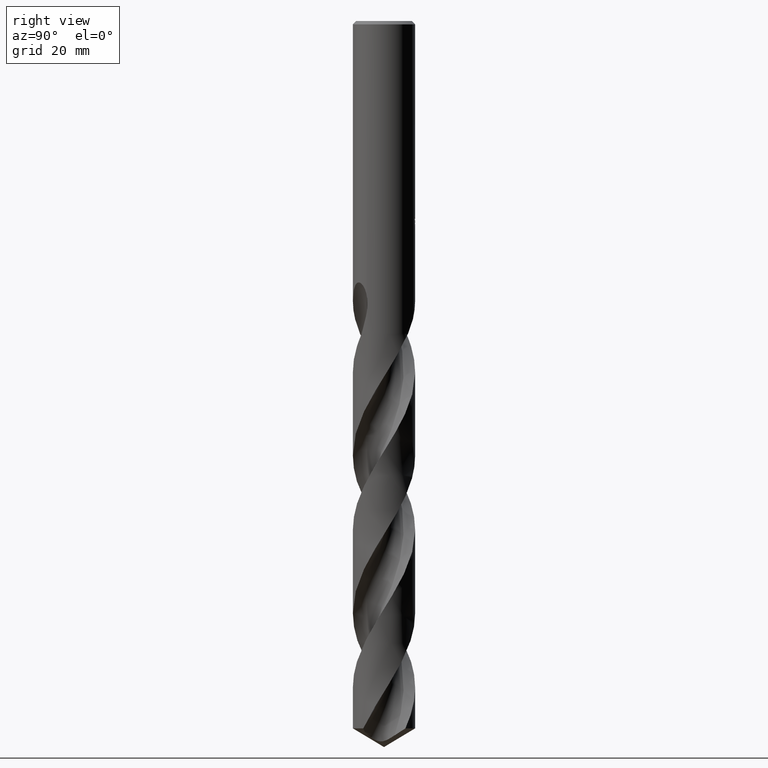
[diagram: clean part render]
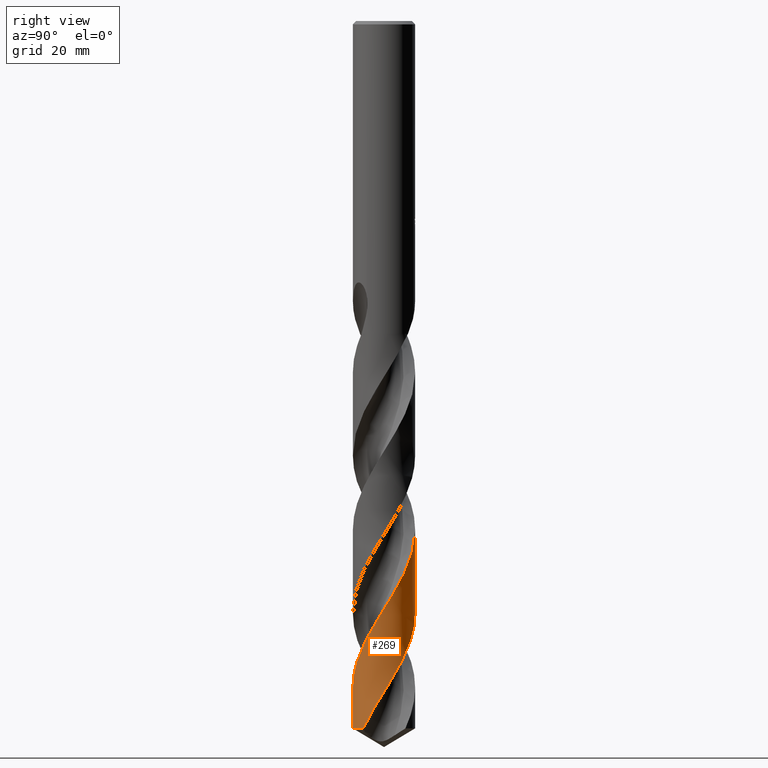
[diagram: same view with one face highlighted and labeled with its STEP entity id]
A machine part, right view. The second image highlights one B-rep face of the part: STEP entity #269.
In plain terms, the highlighted conical surface has half-angle 0 deg.
Its self-contained STEP definition (entity closure, byte-faithful):
#263=EDGE_CURVE('',#315,#585,#739,.T.);
#269=ADVANCED_FACE('',(#745),#746,.T.);
#315=VERTEX_POINT('',#796);
#361=EDGE_CURVE('',#475,#547,#844,.T.);
#439=VERTEX_POINT('',#930);
#475=VERTEX_POINT('',#970);
#547=VERTEX_POINT('',#1050);
#575=EDGE_CURVE('',#439,#585,#1082,.T.);
#585=VERTEX_POINT('',#1093);
#645=EDGE_CURVE('',#315,#547,#1156,.T.);
#649=EDGE_CURVE('',#439,#475,#1160,.T.);
#739=LINE('',#1250,#1251);
#745=FACE_OUTER_BOUND('',#1267,.T.);
#746=CONICAL_SURFACE('',#1268,7.24995,1.08880559160692E-006);
#796=CARTESIAN_POINT('',(8.8829462208022E-015,7.24994974277336,-118.485633632379));
#844=LINE('',#2136,#2137);
#930=CARTESIAN_POINT('',(5.41990999758817,-4.81529600523621,-164.64376051205));
#970=CARTESIAN_POINT('',(8.89818686412296E-016,-7.25,-164.64376051205));
#1050=CARTESIAN_POINT('',(3.37508618987888E-013,-7.24998968622698,-155.171203519788));
#1082=B_SPLINE_CURVE_WITH_KNOTS('',3,(#5506,#5507,#5508,#5509,#5510,#5511,#5512,#5513,#5514,#5515,#5516,#5517,#5518,#5519,#5520,#5521,#5522,#5523,#5524,#5525,#5526,#5527,#5528,#5529,#5530,#5531,#5532,#5533,#5534,#5535,#5536,#5537,#5538,#5539,#5540,#5541,#5542,#5543,#5544,#5545,#5546,#5547,#5548,#5549,#5550,#5551,#5552,#5553,#5554,#5555,#5556,#5557,#5558,#5559,#5560,#5561,#5562,#5563,#5564,#5565,#5566,#5567,#5568,#5569,#5570,#5571,#5572,#5573,#5574,#5575,#5576,#5577,#5578,#5579,#5580,#5581,#5582,#5583,#5584,#5585,#5586,#5587,#5588,#5589,#5590,#5591,#5592,#5593,#5594,#5595,#5596,#5597,#5598,#5599,#5600,#5601,#5602,#5603,#5604,#5605,#5606,#5607,#5608,#5609,#5610,#5611,#5612,#5613,#5614,#5615,#5616,#5617,#5618,#5619,#5620,#5621,#5622,#5623,#5624,#5625,#5626,#5627,#5628,#5629,#5630,#5631,#5632,#5633,#5634,#5635,#5636,#5637,#5638,#5639,#5640,#5641,#5642,#5643,#5644,#5645,#5646,#5647),.UNSPECIFIED.,.F.,.F.,(4,2,2,2,2,2,2,2,2,2,2,2,2,2,2,2,2,2,2,2,2,2,2,2,2,2,2,2,2,2,2,2,2,2,2,2,2,2,2,2,2,2,2,2,2,2,2,2,2,2,2,2,2,2,2,2,2,2,2,2,2,2,2,2,2,2,2,2,2,2,4),(0.0,1.77031661136336,2.2079159781432,5.46100723138121,5.57044834977107,7.3284960886846,8.21140107168612,9.97065888780956,11.6071749403061,14.1226461325513,15.3162181680127,16.5735950786989,18.308424539958,19.2434007951192,20.0001691051215,21.7072119357992,22.6635146181187,23.6807587615304,25.3634901485962,27.309830980384,29.0814694774495,30.8834037993884,32.4137662076556,34.469370125932,36.2248176799657,38.7477141419182,40.0133134670493,41.2739882944985,44.2853235477928,44.592921168319,47.7529109944366,48.1591466178199,51.1612755409815,52.0170024877003,53.7143185301956,54.592309956674,55.4321877625464,58.5191528015401,58.6264359360505,61.6033989685783,62.655911313546,64.4200206673029,66.1941874600155,67.9556674370733,69.7190180895748,71.4814401027902,73.2456270575926,75.0088286872948,76.7740908327381,78.5382076590317,80.3045519142809,81.9634016267342,83.9117161386473,85.5611138498389,88.3863651272501,89.4120787105353,91.1670719596842,93.1225023530171,94.9685097181707,98.0078323691015,102.389926870379,102.989329655611,103.83611565967,104.967343775863,105.725220734157,107.429516948859,108.723229495338,110.126546036505,112.443371813341,115.304596970301,122.904156213651),.UNSPECIFIED.);
#1093=CARTESIAN_POINT('',(-1.8206496868914E-014,7.24997079218863,-137.818208198195));
#1156=B_SPLINE_CURVE_WITH_KNOTS('',3,(#5959,#5960,#5961,#5962,#5963,#5964,#5965,#5966,#5967,#5968,#5969,#5970,#5971,#5972,#5973,#5974,#5975,#5976,#5977,#5978,#5979,#5980,#5981,#5982,#5983,#5984,#5985,#5986,#5987,#5988,#5989,#5990,#5991,#5992,#5993,#5994,#5995,#5996,#5997,#5998,#5999,#6000,#6001,#6002,#6003,#6004,#6005,#6006,#6007,#6008,#6009,#6010,#6011,#6012,#6013,#6014,#6015,#6016,#6017,#6018,#6019,#6020,#6021,#6022,#6023,#6024,#6025,#6026,#6027,#6028,#6029,#6030,#6031,#6032,#6033,#6034,#6035,#6036,#6037,#6038,#6039,#6040,#6041,#6042,#6043,#6044,#6045,#6046,#6047,#6048,#6049,#6050,#6051,#6052,#6053,#6054,#6055,#6056,#6057,#6058,#6059,#6060,#6061,#6062,#6063,#6064,#6065,#6066,#6067,#6068,#6069,#6070,#6071,#6072,#6073,#6074,#6075,#6076,#6077,#6078,#6079,#6080,#6081,#6082,#6083,#6084,#6085,#6086,#6087,#6088,#6089,#6090,#6091,#6092,#6093,#6094,#6095,#6096,#6097,#6098,#6099,#6100,#6101,#6102,#6103,#6104,#6105,#6106),.UNSPECIFIED.,.F.,.F.,(4,2,2,2,2,2,2,2,2,2,2,2,2,2,2,2,2,2,2,2,2,2,2,2,2,2,2,2,2,2,2,2,2,2,2,2,2,2,2,2,2,2,2,2,2,2,2,2,2,2,2,2,2,2,2,2,2,2,2,2,2,2,2,2,2,2,2,2,2,2,2,2,2,4),(0.0,0.36127885700173,0.511555793726125,0.572866159470838,0.614029061692054,0.682420342986496,1.57952066676842,1.84040718541646,1.99265953726927,2.12832221497726,2.29960421961718,2.48533632622595,2.80173896702203,3.84234105991175,4.39947394299839,4.92203251217006,5.45622287414624,8.05018012833487,9.1221406645093,13.6947311687407,14.102216249901,15.8223427710484,18.2890880104527,19.5146266012315,20.1289702679824,21.3383141707364,23.757680618259,24.8346883552372,27.2568316181812,27.8949786160675,29.8365778595351,30.4509073237146,31.6601114271447,34.0799118915367,35.1506322810658,37.5721568835027,38.2102088311488,40.1449371443943,40.7592660788133,41.9688728734922,44.3882195076398,45.4600698530377,47.880860326735,48.929964727779,51.3529310826159,51.990817867352,53.9712786612536,56.4222061713072,57.6512908938055,60.0879107964367,61.3194006010051,62.5325182401024,64.912313859618,66.0636797856345,68.4830104071851,69.546233234091,71.9677327347099,72.6055196053814,74.5659229981766,77.0183015320576,78.2468500130202,80.6845201571087,81.915469341264,83.1299620084256,85.4437890951745,86.6532080460393,88.9244914349549,89.9238486204711,91.8017006905451,93.463433704742,96.3485052316724,96.4164163729482,98.5837904980097,105.146051900226),.UNSPECIFIED.);
#1160=CIRCLE('',#6111,7.25);
#1250=CARTESIAN_POINT('',(-8.85854403598381E-016,7.24995,-118.721880256025));
#1251=VECTOR('',#7099,1.0);
#1267=EDGE_LOOP('',(#7101,#7102,#7103,#7104,#7105));
#1268=AXIS2_PLACEMENT_3D('',#7106,#7107,#7108);
#2136=CARTESIAN_POINT('',(8.89812563380527E-016,-7.24995,-118.721880256025));
#2137=VECTOR('',#7204,1.0);
#5506=CARTESIAN_POINT('',(5.41990999758818,-4.81529600523614,-164.64376051205));
#5507=CARTESIAN_POINT('',(5.62699327309877,-4.5822102989879,-164.142749418872));
#5508=CARTESIAN_POINT('',(5.81847945492335,-4.33639775587073,-163.642954985553));
#5509=CARTESIAN_POINT('',(6.03655625552251,-4.01601333712037,-163.017291895658));
#5510=CARTESIAN_POINT('',(6.0787356379395,-3.95187998572451,-162.893228652454));
#5511=CARTESIAN_POINT('',(6.42635111747682,-3.40456690166788,-161.846719169909));
#5512=CARTESIAN_POINT('',(6.67453029300598,-2.8877997001006,-160.93399500871));
#5513=CARTESIAN_POINT('',(6.86569832857158,-2.32915910769457,-159.980768159069));
#5514=CARTESIAN_POINT('',(6.87184969283005,-2.31094754797721,-159.949731846023));
#5515=CARTESIAN_POINT('',(6.97576900943229,-1.99919199465421,-159.419307551442));
#5516=CARTESIAN_POINT('',(7.05482273625604,-1.69942187986143,-158.921502828501));
#5517=CARTESIAN_POINT('',(7.14445779389312,-1.24232468201037,-158.172130615926));
#5518=CARTESIAN_POINT('',(7.16948251590681,-1.0886372215351,-157.921761672443));
#5519=CARTESIAN_POINT('',(7.22949671576663,-0.626824081643201,-157.171850997222));
#5520=CARTESIAN_POINT('',(7.24968515628131,-0.317195276682783,-156.671424586199));
#5521=CARTESIAN_POINT('',(7.25026840620979,0.281405041044629,-155.707623312573));
#5522=CARTESIAN_POINT('',(7.23333140554921,0.569662369797116,-155.244346244316));
#5523=CARTESIAN_POINT('',(7.14688479599667,1.29655439019226,-154.066046165148));
#5524=CARTESIAN_POINT('',(7.05422309284639,1.73121045236728,-153.351100732361));
#5525=CARTESIAN_POINT('',(6.85979207802596,2.35581683533309,-152.298680292741));
#5526=CARTESIAN_POINT('',(6.78852219378259,2.55392154654746,-151.960433175094));
#5527=CARTESIAN_POINT('',(6.62476147070705,2.95363007456231,-151.264799438851));
#5528=CARTESIAN_POINT('',(6.53146382654359,3.15456023178658,-150.907233606204));
#5529=CARTESIAN_POINT('',(6.28802897079907,3.621631431563,-150.058148116558));
#5530=CARTESIAN_POINT('',(6.12983378927679,3.88341357377489,-149.567343234003));
#5531=CARTESIAN_POINT('',(5.86146707282693,4.26996630458099,-148.810194294107));
#5532=CARTESIAN_POINT('',(5.76296492736454,4.40199490655639,-148.545196181015));
#5533=CARTESIAN_POINT('',(5.5769063288699,4.6344464183102,-148.065149218547));
#5534=CARTESIAN_POINT('',(5.49089136917921,4.7360405009862,-147.850160221019));
#5535=CARTESIAN_POINT('',(5.20174545352909,5.05908052722904,-147.151061009867));
#5536=CARTESIAN_POINT('',(4.98754015223356,5.27040646346485,-146.668114823966));
#5537=CARTESIAN_POINT('',(4.63349626791822,5.57864916640555,-145.912938849712));
#5538=CARTESIAN_POINT('',(4.5026325307077,5.68479004161711,-145.641966580196));
#5539=CARTESIAN_POINT('',(4.2253697890913,5.89410770089898,-145.082105560731));
#5540=CARTESIAN_POINT('',(4.07860651509204,5.99660011510925,-144.793067975654));
#5541=CARTESIAN_POINT('',(3.67917950164341,6.25408143619741,-144.027131939461));
#5542=CARTESIAN_POINT('',(3.42049873699974,6.39924145325933,-143.551120262067));
#5543=CARTESIAN_POINT('',(2.84463127322871,6.67741482746327,-142.522174575997));
#5544=CARTESIAN_POINT('',(2.52578419584051,6.8043985222292,-141.969331673098));
#5545=CARTESIAN_POINT('',(1.90242238508837,7.00286283569718,-140.915130922643));
#5546=CARTESIAN_POINT('',(1.59947328727839,7.07821670394708,-140.414350083861));
#5547=CARTESIAN_POINT('',(0.980202850818778,7.19041102989122,-139.401528393396));
#5548=CARTESIAN_POINT('',(0.664780730908108,7.22638384339527,-138.889760528629));
#5549=CARTESIAN_POINT('',(0.0793070178081223,7.2545332248928,-137.94530625066));
#5550=CARTESIAN_POINT('',(-0.190217773862362,7.25248262712795,-137.512583302559));
#5551=CARTESIAN_POINT('',(-0.820381688522772,7.21249221149475,-136.4966988565));
#5552=CARTESIAN_POINT('',(-1.17917793601373,7.16256155283729,-135.913303973883));
#5553=CARTESIAN_POINT('',(-1.83429700034399,7.02087622248797,-134.833532442993));
#5554=CARTESIAN_POINT('',(-2.13167034896101,6.93638567230096,-134.337663506914));
#5555=CARTESIAN_POINT('',(-2.84132058513967,6.68476152125097,-133.125889535976));
#5556=CARTESIAN_POINT('',(-3.24520851411474,6.49829274029885,-132.410087411078));
#5557=CARTESIAN_POINT('',(-3.82245461761002,6.16444959345078,-131.337157725787));
#5558=CARTESIAN_POINT('',(-4.00999449214374,6.04412762083216,-130.979245151402));
#5559=CARTESIAN_POINT('',(-4.37259186320966,5.7871909116429,-130.263638061758));
#5560=CARTESIAN_POINT('',(-4.54741206866866,5.65084276373333,-129.905853118631));
#5561=CARTESIAN_POINT('',(-5.11733984099442,5.16280074997267,-128.696069507551));
#5562=CARTESIAN_POINT('',(-5.48001297170732,4.77604521299061,-127.850563717607));
#5563=CARTESIAN_POINT('',(-5.82973500413519,4.31033728829711,-126.91060782448));
#5564=CARTESIAN_POINT('',(-5.86166006945815,4.26682158195669,-126.823461607737));
#5565=CARTESIAN_POINT('',(-6.21661824268525,3.77146571709006,-125.840299376584));
#5566=CARTESIAN_POINT('',(-6.48707028727649,3.2845099924617,-124.952799386317));
#5567=CARTESIAN_POINT('',(-6.72658247994817,2.70555711226091,-123.941907256858));
#5568=CARTESIAN_POINT('',(-6.75287464098683,2.63924955203463,-123.826710404083));
#5569=CARTESIAN_POINT('',(-6.9654469618387,2.0791437300671,-122.86023308285));
#5570=CARTESIAN_POINT('',(-7.09824866160923,1.56688755439386,-122.01622443938));
#5571=CARTESIAN_POINT('',(-7.19595969849747,0.895877617765064,-120.922634669847));
#5572=CARTESIAN_POINT('',(-7.21300485106878,0.746348428797049,-120.679605021632));
#5573=CARTESIAN_POINT('',(-7.24994997844439,0.298670501333507,-119.95556878983));
#5574=CARTESIAN_POINT('',(-7.25611392129902,-0.000359597221019359,-119.47559790591));
#5575=CARTESIAN_POINT('',(-7.23739625270149,-0.453644411189846,-118.745646468486));
#5576=CARTESIAN_POINT('',(-7.22607555705036,-0.607832890106011,-118.496914492205));
#5577=CARTESIAN_POINT('',(-7.19433483371619,-0.908372749029441,-118.009742611503));
#5578=CARTESIAN_POINT('',(-7.17434320260441,-1.0546960242446,-117.771248159701));
#5579=CARTESIAN_POINT('',(-7.05997998117217,-1.73587218839496,-116.657658373507));
#5580=CARTESIAN_POINT('',(-6.91023893691133,-2.25930425142832,-115.789907801262));
#5581=CARTESIAN_POINT('',(-6.69653879751745,-2.77820765900772,-114.883916811522));
#5582=CARTESIAN_POINT('',(-6.68929077109002,-2.79561438829366,-114.853473921775));
#5583=CARTESIAN_POINT('',(-6.47855865582477,-3.29617738735603,-113.976856921728));
#5584=CARTESIAN_POINT('',(-6.22331039373815,-3.75597180917798,-113.137901745237));
#5585=CARTESIAN_POINT('',(-5.81346341425717,-4.33586386019015,-111.993365494616));
#5586=CARTESIAN_POINT('',(-5.70070559865436,-4.48308269682344,-111.693912177167));
#5587=CARTESIAN_POINT('',(-5.38395865734838,-4.86531708635511,-110.893826705431));
#5588=CARTESIAN_POINT('',(-5.17027986517563,-5.09182950019907,-110.394264473911));
#5589=CARTESIAN_POINT('',(-4.71355944744426,-5.51742429023593,-109.38968632328));
#5590=CARTESIAN_POINT('',(-4.47112222415958,-5.71562572977485,-108.885002797693));
#5591=CARTESIAN_POINT('',(-3.96444463114413,-6.07791758592492,-107.881199343432));
#5592=CARTESIAN_POINT('',(-3.70056463400774,-6.24210844829964,-107.382635377056));
#5593=CARTESIAN_POINT('',(-3.152766791447,-6.53592742709079,-106.38238594531));
#5594=CARTESIAN_POINT('',(-2.86973639608254,-6.66502762406155,-105.881041662013));
#5595=CARTESIAN_POINT('',(-2.28953374545379,-6.88592028193335,-104.880552772012));
#5596=CARTESIAN_POINT('',(-1.99258292094454,-6.97765452516864,-104.381976095354));
#5597=CARTESIAN_POINT('',(-1.38811468856388,-7.12259535306217,-103.381719492867));
#5598=CARTESIAN_POINT('',(-1.08159184279264,-7.17551835482097,-102.880372257637));
#5599=CARTESIAN_POINT('',(-0.464401146370865,-7.2416926699937,-101.879935191051));
#5600=CARTESIAN_POINT('',(-0.153932145662462,-7.25494903350509,-101.381395077385));
#5601=CARTESIAN_POINT('',(0.467508272490736,-7.24152100290074,-100.381149677533));
#5602=CARTESIAN_POINT('',(0.777444630660753,-7.21480787302419,-99.879785317848));
#5603=CARTESIAN_POINT('',(1.3912113146821,-7.12195640521539,-98.8793294644916));
#5604=CARTESIAN_POINT('',(1.69485897315765,-7.05587640062841,-98.3808038864143));
#5605=CARTESIAN_POINT('',(2.29252908047793,-6.88494568946702,-97.3805530454562));
#5606=CARTESIAN_POINT('',(2.58553734432151,-6.78032754043114,-96.8791875562105));
#5607=CARTESIAN_POINT('',(3.13844293625977,-6.54191314301157,-95.9088027391818));
#5608=CARTESIAN_POINT('',(3.39915616254499,-6.41033377987713,-95.4401243924082));
#5609=CARTESIAN_POINT('',(3.94760378846028,-6.09059862775821,-94.4187141074544));
#5610=CARTESIAN_POINT('',(4.23101495029661,-5.8972124094749,-93.8660199866708));
#5611=CARTESIAN_POINT('',(4.72674160548792,-5.50484244324438,-92.8472431125196));
#5612=CARTESIAN_POINT('',(4.94312853771173,-5.31140479565675,-92.3814424878427));
#5613=CARTESIAN_POINT('',(5.49741980087453,-4.75254721700037,-91.1149235593133));
#5614=CARTESIAN_POINT('',(5.81012827807599,-4.36471527291686,-90.3141785441382));
#5615=CARTESIAN_POINT('',(6.17901446296383,-3.79653082875958,-89.2242553861467));
#5616=CARTESIAN_POINT('',(6.27156601968896,-3.64160629466689,-88.9342211343846));
#5617=CARTESIAN_POINT('',(6.50650573497803,-3.21277345771187,-88.1471013313532));
#5618=CARTESIAN_POINT('',(6.63727558074134,-2.93308965473898,-87.6492327780574));
#5619=CARTESIAN_POINT('',(6.87529190895348,-2.32588987204328,-86.5989267061364));
#5620=CARTESIAN_POINT('',(6.97780327400674,-1.99740476779243,-86.0474788703664));
#5621=CARTESIAN_POINT('',(7.13104276883724,-1.34711848812555,-84.9714564650501));
#5622=CARTESIAN_POINT('',(7.18416457054024,-1.02680418259408,-84.4475807764348));
#5623=CARTESIAN_POINT('',(7.26753680288465,-0.172039814408207,-83.0647374298732));
#5624=CARTESIAN_POINT('',(7.26045806905352,0.363750990362551,-82.2092413719847));
#5625=CARTESIAN_POINT('',(7.09963001941673,1.65820301658087,-80.1076680648369));
#5626=CARTESIAN_POINT('',(6.88283019740403,2.40867627148403,-78.8470027672393));
#5627=CARTESIAN_POINT('',(6.49998507817685,3.21291205610286,-77.4427962618165));
#5628=CARTESIAN_POINT('',(6.45316987770763,3.30589277245,-77.2802589347475));
#5629=CARTESIAN_POINT('',(6.33340295664322,3.5314995985303,-76.8763584413048));
#5630=CARTESIAN_POINT('',(6.26018388053251,3.659549677627,-76.639500306002));
#5631=CARTESIAN_POINT('',(6.08312956632226,3.94895992057202,-76.0809679002649));
#5632=CARTESIAN_POINT('',(5.97908658760833,4.10412957379143,-75.76221494899));
#5633=CARTESIAN_POINT('',(5.80327215178017,4.34713700240972,-75.2305027360254));
#5634=CARTESIAN_POINT('',(5.75139039523195,4.41395323588529,-75.0748655087633));
#5635=CARTESIAN_POINT('',(5.71225502498058,4.46466038875625,-74.9585565626227));
#5636=CARTESIAN_POINT('',(5.68428315583935,4.50023888596395,-74.8786623500042));
#5637=CARTESIAN_POINT('',(5.63333921621522,4.5637489268071,-74.7389963831913));
#5638=CARTESIAN_POINT('',(5.61081242314347,4.59142451849635,-74.6790865734256));
#5639=CARTESIAN_POINT('',(5.56263512552906,4.64970063488738,-74.5548568173571));
#5640=CARTESIAN_POINT('',(5.53690650961606,4.68032026393201,-74.4906573668122));
#5641=CARTESIAN_POINT('',(5.46682936962431,4.76228527584429,-74.3215137531709));
#5642=CARTESIAN_POINT('',(5.42122865273545,4.81417484816053,-74.2172207528398));
#5643=CARTESIAN_POINT('',(5.31592781164384,4.93046600856201,-73.9885789577332));
#5644=CARTESIAN_POINT('',(5.25492784912809,4.99551928932903,-73.8641707375835));
#5645=CARTESIAN_POINT('',(5.02082572099269,5.23562013604394,-73.4154776712974));
#5646=CARTESIAN_POINT('',(4.83134213253653,5.41244427907465,-73.1051712912071));
#5647=CARTESIAN_POINT('',(4.6197685579524,5.587377610283,-72.805));
#5959=CARTESIAN_POINT('',(5.03924001636974,-5.21220779961383,-72.805));
#5960=CARTESIAN_POINT('',(4.9958160465987,-5.25419089717091,-72.9091838214333));
#5961=CARTESIAN_POINT('',(4.95172797953699,-5.29576833273805,-73.0133916861865));
#5962=CARTESIAN_POINT('',(4.88816240651859,-5.3542102528643,-73.1607995316343));
#5963=CARTESIAN_POINT('',(4.86936391555551,-5.37131280215207,-73.2040545300941));
#5964=CARTESIAN_POINT('',(4.84268906170007,-5.39532465714857,-73.264926516457));
#5965=CARTESIAN_POINT('',(4.83493705990719,-5.40227265886338,-73.2825572106701));
#5966=CARTESIAN_POINT('',(4.82194003211446,-5.41387120128166,-73.3120157248082));
#5967=CARTESIAN_POINT('',(4.81670875122929,-5.41852601712395,-73.3238455302777));
#5968=CARTESIAN_POINT('',(4.80275667634934,-5.430904405324,-73.3553229786778));
#5969=CARTESIAN_POINT('',(4.7940180102193,-5.43861992469531,-73.3749626154486));
#5970=CARTESIAN_POINT('',(4.6702138392502,-5.54739710112713,-73.6521179335314));
#5971=CARTESIAN_POINT('',(4.55232427039289,-5.64468271553061,-73.9026331625224));
#5972=CARTESIAN_POINT('',(4.39059605998509,-5.76938955044824,-74.2298146459068));
#5973=CARTESIAN_POINT('',(4.35377521939829,-5.79722961816856,-74.3033045567679));
#5974=CARTESIAN_POINT('',(4.29469538497764,-5.84101031400108,-74.4197905434417));
#5975=CARTESIAN_POINT('',(4.27279791705536,-5.85704822876774,-74.4626622200698));
#5976=CARTESIAN_POINT('',(4.23113349682963,-5.88720427561564,-74.5437160167107));
#5977=CARTESIAN_POINT('',(4.21140876786732,-5.901330743264,-74.5818721632305));
#5978=CARTESIAN_POINT('',(4.16655976057585,-5.93311049044448,-74.6681920694686));
#5979=CARTESIAN_POINT('',(4.14139925661168,-5.95070053343208,-74.7163111422366));
#5980=CARTESIAN_POINT('',(4.08866978931485,-5.98706703186043,-74.8166221867686));
#5981=CARTESIAN_POINT('',(4.06110169942848,-6.00580111136353,-74.8687677217153));
#5982=CARTESIAN_POINT('',(3.98621019987194,-6.05594239487091,-75.0098093347354));
#5983=CARTESIAN_POINT('',(3.93806906203548,-6.08737033383272,-75.0997938530258));
#5984=CARTESIAN_POINT('',(3.72766004688673,-6.2211087779138,-75.4928136535438));
#5985=CARTESIAN_POINT('',(3.56360078870398,-6.31642712036643,-75.7970098018866));
#5986=CARTESIAN_POINT('',(3.30838310484822,-6.45181018190852,-76.2633169353616));
#5987=CARTESIAN_POINT('',(3.21851140464705,-6.49710665105013,-76.4262340095957));
#5988=CARTESIAN_POINT('',(3.04278071079523,-6.58114625029744,-76.741715007978));
#5989=CARTESIAN_POINT('',(2.95689444576217,-6.62018110898688,-76.8945190537081));
#5990=CARTESIAN_POINT('',(2.78162378283136,-6.69574474351495,-77.203217880615));
#5991=CARTESIAN_POINT('',(2.69234413567818,-6.73214193601946,-77.3587714916787));
#5992=CARTESIAN_POINT('',(2.16440517024936,-6.93516280083128,-78.2705445147422));
#5993=CARTESIAN_POINT('',(1.71116542550827,-7.06069933427499,-79.021963874083));
#5994=CARTESIAN_POINT('',(1.05758343315321,-7.1749790419275,-80.0906393187419));
#5995=CARTESIAN_POINT('',(0.865297781087108,-7.2006942039861,-80.4033175156962));
#5996=CARTESIAN_POINT('',(-0.150903267037553,-7.29533984089531,-82.0490306281019));
#5997=CARTESIAN_POINT('',(-0.981546561565507,-7.23066664539606,-83.3700647058746));
#5998=CARTESIAN_POINT('',(-1.8550901794646,-7.00894558224175,-84.8214628205843));
#5999=CARTESIAN_POINT('',(-1.9262751291392,-6.98971682608581,-84.9402085512193));
#6000=CARTESIAN_POINT('',(-2.29632819409458,-6.88367538100685,-85.5603570752408));
#6001=CARTESIAN_POINT('',(-2.5896925265561,-6.77876270918322,-86.061525862166));
#6002=CARTESIAN_POINT('',(-3.2851402733498,-6.47829828134993,-87.2819129586541));
#6003=CARTESIAN_POINT('',(-3.67763677376291,-6.26382257053232,-87.9987301526127));
#6004=CARTESIAN_POINT('',(-4.23186272576411,-5.89082448242671,-89.0749732243358));
#6005=CARTESIAN_POINT('',(-4.41006323225981,-5.75863208233656,-89.4320480093385));
#6006=CARTESIAN_POINT('',(-4.66809925307993,-5.54820068447068,-89.9683048961076));
#6007=CARTESIAN_POINT('',(-4.75263678066343,-5.47595940308543,-90.1473302765006));
#6008=CARTESIAN_POINT('',(-4.9985727779593,-5.25580755266487,-90.6788380567723));
#6009=CARTESIAN_POINT('',(-5.15493476732554,-5.10253509075474,-91.0310076358737));
#6010=CARTESIAN_POINT('',(-5.60252932132796,-4.62219029528576,-92.088755375035));
#6011=CARTESIAN_POINT('',(-5.8714006129672,-4.27548840924657,-92.7927600113888));
#6012=CARTESIAN_POINT('',(-6.21242289281992,-3.74235065076512,-93.8117959619934));
#6013=CARTESIAN_POINT('',(-6.31078182261484,-3.57398887940925,-94.1255110439193));
#6014=CARTESIAN_POINT('',(-6.60787570085887,-3.01487345081289,-95.1455381685633));
#6015=CARTESIAN_POINT('',(-6.7780529268344,-2.60991334302949,-95.8503450885716));
#6016=CARTESIAN_POINT('',(-6.94554186856174,-2.08187891220022,-96.7423208802826));
#6017=CARTESIAN_POINT('',(-6.97782650545754,-1.97096596872123,-96.9282493842092));
#6018=CARTESIAN_POINT('',(-7.09756653508059,-1.51969409540495,-97.6802521810515));
#6019=CARTESIAN_POINT('',(-7.16287889223391,-1.17393061107989,-98.2458473384014));
#6020=CARTESIAN_POINT('',(-7.21550878220549,-0.714324720393614,-98.9909174300476));
#6021=CARTESIAN_POINT('',(-7.22561662864588,-0.603571014633187,-99.1699647630191));
#6022=CARTESIAN_POINT('',(-7.2480471398016,-0.274230562885493,-99.7015032616054));
#6023=CARTESIAN_POINT('',(-7.25302038584988,-0.0553200794366872,-100.053672786448));
#6024=CARTESIAN_POINT('',(-7.23821552718821,0.601242518809037,-101.11165271765));
#6025=CARTESIAN_POINT('',(-7.18869646243714,1.0373320288043,-101.815879150997));
#6026=CARTESIAN_POINT('',(-7.06088924361462,1.65618260989411,-102.833360380474));
#6027=CARTESIAN_POINT('',(-7.01409514257474,1.84432755090199,-103.145295460236));
#6028=CARTESIAN_POINT('',(-6.8371082366047,2.45102703298701,-104.163461789679));
#6029=CARTESIAN_POINT('',(-6.67646799801057,2.85981213766229,-104.86819507289));
#6030=CARTESIAN_POINT('',(-6.42803463777992,3.35488967100853,-105.760094667401));
#6031=CARTESIAN_POINT('',(-6.37377246994784,3.45686801354368,-105.946022379645));
#6032=CARTESIAN_POINT('',(-6.14525878172535,3.86264441630549,-106.696105465198));
#6033=CARTESIAN_POINT('',(-5.95152325731677,4.15495158637905,-107.259789602588));
#6034=CARTESIAN_POINT('',(-5.6694366668933,4.52011730420051,-108.002968553646));
#6035=CARTESIAN_POINT('',(-5.59943173352339,4.60655442905937,-108.18204278007));
#6036=CARTESIAN_POINT('',(-5.38574816532533,4.85832218217724,-108.713778272135));
#6037=CARTESIAN_POINT('',(-5.23656943475718,5.01875426636472,-109.066115400217));
#6038=CARTESIAN_POINT('',(-4.76798878617012,5.47902074906503,-110.124234889295));
#6039=CARTESIAN_POINT('',(-4.42837204173886,5.75700135904759,-110.828433411206));
#6040=CARTESIAN_POINT('',(-3.90499503681177,6.11149283499457,-111.846260264851));
#6041=CARTESIAN_POINT('',(-3.74003862816909,6.21380873544929,-112.158567009244));
#6042=CARTESIAN_POINT('',(-3.18989542625629,6.52519996874929,-113.176997788877));
#6043=CARTESIAN_POINT('',(-2.78972053495751,6.70606385170293,-113.881627336986));
#6044=CARTESIAN_POINT('',(-2.19611516359087,6.91193734613624,-114.893290114655));
#6045=CARTESIAN_POINT('',(-2.01430134169728,6.96709177672008,-115.19900707347));
#6046=CARTESIAN_POINT('',(-1.40621152182795,7.12577305336342,-116.211482097615));
#6047=CARTESIAN_POINT('',(-0.972590064958574,7.19779934314348,-116.916733088616));
#6048=CARTESIAN_POINT('',(-0.419844966893145,7.2387038126555,-117.809164113436));
#6049=CARTESIAN_POINT('',(-0.304480881211016,7.24447317439659,-117.995080418714));
#6050=CARTESIAN_POINT('',(0.169389350049416,7.25683393585064,-118.758592250784));
#6051=CARTESIAN_POINT('',(0.528039518655115,7.23958149983415,-119.335661076773));
#6052=CARTESIAN_POINT('',(1.32440120818103,7.14175706877434,-120.627859667667));
#6053=CARTESIAN_POINT('',(1.7589030662777,7.04733263506988,-121.340783670474));
#6054=CARTESIAN_POINT('',(2.39414183674797,6.8468543578086,-122.413993194527));
#6055=CARTESIAN_POINT('',(2.60314378260387,6.77015578281704,-122.77224500103));
#6056=CARTESIAN_POINT('',(3.21506987087342,6.51305112791813,-123.841152505187));
#6057=CARTESIAN_POINT('',(3.60532271046995,6.30539944006238,-124.550162724647));
#6058=CARTESIAN_POINT('',(4.16066841823318,5.94141540051536,-125.619890664175));
#6059=CARTESIAN_POINT('',(4.34141010096507,5.81066060584085,-125.978814821584));
#6060=CARTESIAN_POINT('',(4.68772007605114,5.5349288504122,-126.691638995209));
#6061=CARTESIAN_POINT('',(4.85323878509436,5.39038127350288,-127.045045500868));
#6062=CARTESIAN_POINT('',(5.32322183697787,4.9407327280352,-128.092848131244));
#6063=CARTESIAN_POINT('',(5.60741327765685,4.61568956261412,-128.785763001698));
#6064=CARTESIAN_POINT('',(5.98381073668938,4.09871144632469,-129.815446132999));
#6065=CARTESIAN_POINT('',(6.09918540482588,3.9249636014339,-130.150935536237));
#6066=CARTESIAN_POINT('',(6.43323387915869,3.37154331438598,-131.192324800264));
#6067=CARTESIAN_POINT('',(6.625171646067,2.97675386396695,-131.896681686398));
#6068=CARTESIAN_POINT('',(6.84848748398299,2.38690092210825,-132.912235106838));
#6069=CARTESIAN_POINT('',(6.90945049926904,2.20421141841309,-133.222114974904));
#6070=CARTESIAN_POINT('',(7.08516859443317,1.59830765583464,-134.238481489255));
#6071=CARTESIAN_POINT('',(7.16886019286394,1.16696896919014,-134.943463934334));
#6072=CARTESIAN_POINT('',(7.22469999506861,0.615709555764618,-135.835619531301));
#6073=CARTESIAN_POINT('',(7.23359154615187,0.500539081571958,-136.021542706186));
#6074=CARTESIAN_POINT('',(7.25859025611834,0.0307258245591882,-136.779326688167));
#6075=CARTESIAN_POINT('',(7.25139182726025,-0.324690015608565,-137.350684803594));
#6076=CARTESIAN_POINT('',(7.17664372300765,-1.12031689146803,-138.637719636305));
#6077=CARTESIAN_POINT('',(7.09456654424048,-1.55767857666951,-139.351177291346));
#6078=CARTESIAN_POINT('',(6.91212961574404,-2.19864861281114,-140.424863454871));
#6079=CARTESIAN_POINT('',(6.8414171712458,-2.40969691369314,-140.783031454053));
#6080=CARTESIAN_POINT('',(6.60172891294113,-3.02889682835202,-141.852300374695));
#6081=CARTESIAN_POINT('',(6.40510783485005,-3.4251326070906,-142.561724443604));
#6082=CARTESIAN_POINT('',(6.05687872437372,-3.99074658467096,-143.631817737995));
#6083=CARTESIAN_POINT('',(5.93132727085317,-4.17507298781234,-143.990660770073));
#6084=CARTESIAN_POINT('',(5.66537877573168,-4.52924410294576,-144.703873551771));
#6085=CARTESIAN_POINT('',(5.52538334788278,-4.6990094001236,-145.057743165076));
#6086=CARTESIAN_POINT('',(5.09692940035864,-5.17291498485565,-146.086910263369));
#6087=CARTESIAN_POINT('',(4.78949102098146,-5.45881326737387,-146.760852828687));
#6088=CARTESIAN_POINT('',(4.28629922481189,-5.85131278750937,-147.788441092112));
#6089=CARTESIAN_POINT('',(4.1075828479778,-5.97812359505972,-148.140874057246));
#6090=CARTESIAN_POINT('',(3.57757959336717,-6.31920288992873,-149.156211362799));
#6091=CARTESIAN_POINT('',(3.21335453195645,-6.51198007041295,-149.817788957039));
#6092=CARTESIAN_POINT('',(2.66807444597036,-6.74362136547703,-150.771743862297));
#6093=CARTESIAN_POINT('',(2.49889628914459,-6.80812424727355,-151.063020414962));
#6094=CARTESIAN_POINT('',(2.00543193124611,-6.9753987345425,-151.902339140117));
#6095=CARTESIAN_POINT('',(1.67605429793966,-7.06178653148681,-152.449735647927));
#6096=CARTESIAN_POINT('',(1.04603971692939,-7.18043938061073,-153.482252734613));
#6097=CARTESIAN_POINT('',(0.747114290661779,-7.21766638929658,-153.966197444752));
#6098=CARTESIAN_POINT('',(-0.0747091598825947,-7.26840682948626,-155.292629467537));
#6099=CARTESIAN_POINT('',(-0.598252275660565,-7.24414561735699,-156.132054207563));
#6100=CARTESIAN_POINT('',(-1.12686613359312,-7.16189243854799,-156.993410355455));
#6101=CARTESIAN_POINT('',(-1.13901757106529,-7.15996996205315,-157.013219131295));
#6102=CARTESIAN_POINT('',(-1.53881778135806,-7.09567414968393,-157.665254825374));
#6103=CARTESIAN_POINT('',(-1.92073824148169,-7.00194883326219,-158.297014019062));
#6104=CARTESIAN_POINT('',(-3.420791310481,-6.50180837021762,-160.843753198286));
#6105=CARTESIAN_POINT('',(-4.43863900132768,-5.85430145921399,-162.729013141852));
#6106=CARTESIAN_POINT('',(-5.25691777890332,-4.99272625584962,-164.64376051205));
#6111=AXIS2_PLACEMENT_3D('',#7573,#7574,#7575);
#7099=DIRECTION('',(-1.33335824555891E-022,1.08880559160671E-006,-0.999999999999407));
#7101=ORIENTED_EDGE('',*,*,#263,.F.);
#7102=ORIENTED_EDGE('',*,*,#645,.T.);
#7103=ORIENTED_EDGE('',*,*,#361,.F.);
#7104=ORIENTED_EDGE('',*,*,#649,.F.);
#7105=ORIENTED_EDGE('',*,*,#575,.T.);
#7106=CARTESIAN_POINT('',(0.0,0.0,-118.721880256025));
#7107=DIRECTION('',(0.0,-0.0,-1.0));
#7108=DIRECTION('',(0.0,1.0,0.0));
#7204=DIRECTION('',(-1.33335824555891E-022,1.08880559160671E-006,0.999999999999407));
#7573=CARTESIAN_POINT('',(0.0,0.0,-164.64376051205));
#7574=DIRECTION('',(0.0,0.0,-1.0));
#7575=DIRECTION('',(0.0,1.0,0.0));